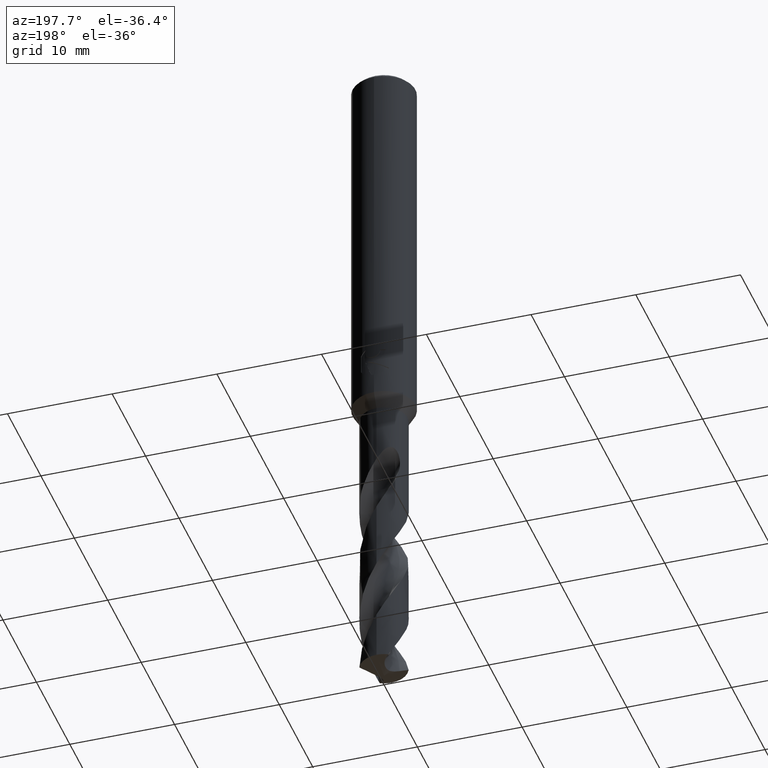
[diagram: clean part render]
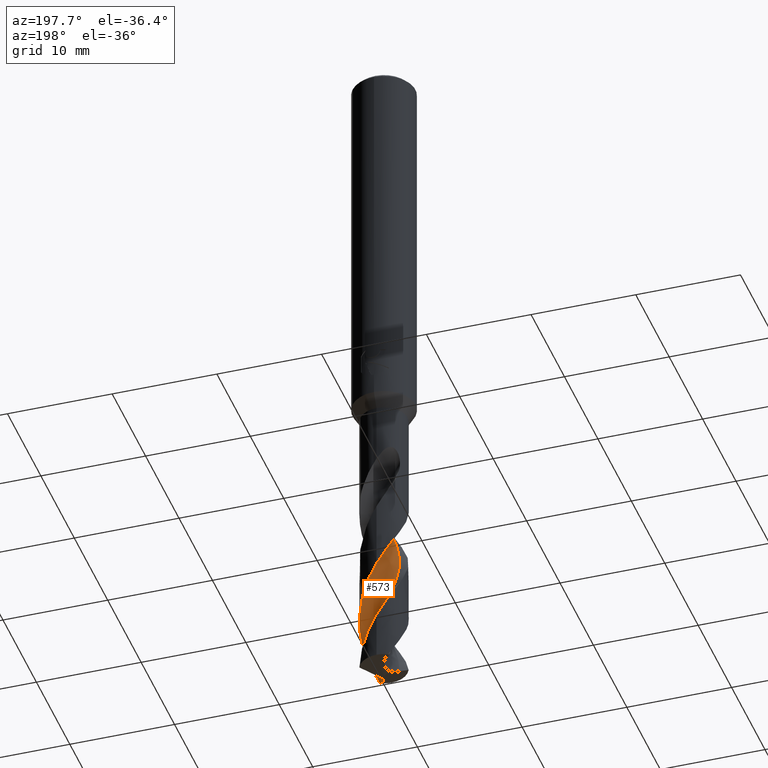
[diagram: same view with one face highlighted and labeled with its STEP entity id]
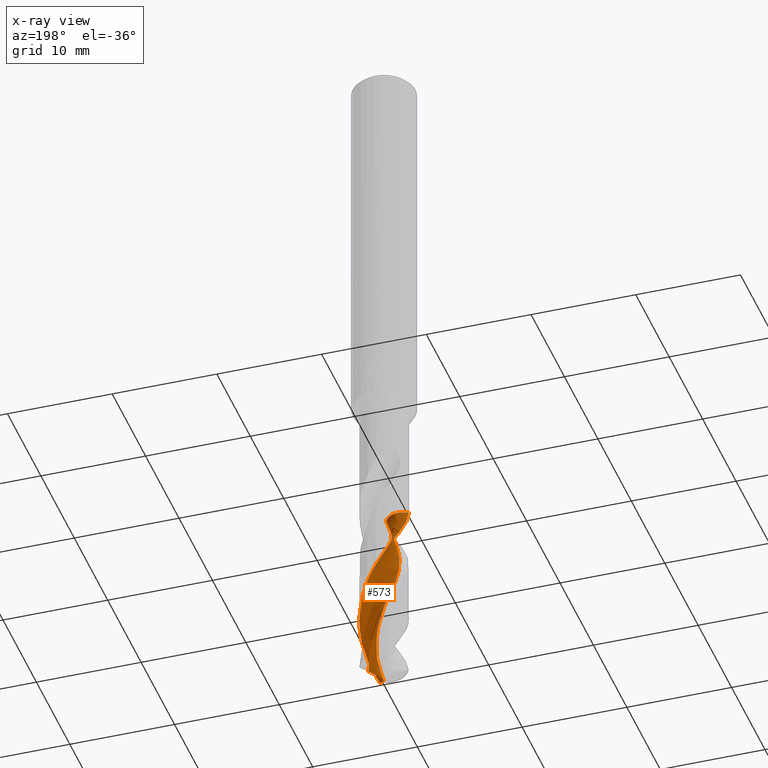
[diagram: x-ray of the same camera — body ghosted, the highlighted face saturated]
A machine part, auxiliary view. The second image highlights one B-rep face of the part: STEP entity #573.
The next image is the same camera in x-ray: the body ghosted, the highlighted face saturated — about 0% of this face is hidden behind the body in this view.
In plain terms, the highlighted face is a freeform B-spline surface patch.
Its self-contained STEP definition (entity closure, byte-faithful):
#347=EDGE_CURVE('',#423,#359,#877,.T.);
#359=VERTEX_POINT('',#891);
#409=VERTEX_POINT('',#942);
#423=VERTEX_POINT('',#957);
#533=VERTEX_POINT('',#1079);
#543=EDGE_CURVE('',#533,#423,#1089,.T.);
#573=ADVANCED_FACE('',(#1123),#1124,.F.);
#617=EDGE_CURVE('',#409,#533,#1173,.T.);
#659=EDGE_CURVE('',#359,#675,#1221,.T.);
#675=VERTEX_POINT('',#1239);
#775=EDGE_CURVE('',#675,#409,#1345,.T.);
#877=B_SPLINE_CURVE_WITH_KNOTS('',3,(#1988,#1989,#1990,#1991,#1992,#1993,#1994,#1995,#1996,#1997,#1998,#1999,#2000,#2001,#2002,#2003,#2004,#2005,#2006,#2007),.UNSPECIFIED.,.F.,.F.,(4,2,2,2,2,2,2,2,2,4),(0.0,0.937655198605884,1.57437014687841,2.17869260320254,2.85637029297408,3.59259860366708,4.42529288121858,5.35650907927525,5.91629192952311,6.47587422448894),.UNSPECIFIED.);
#891=CARTESIAN_POINT('',(1.04147478267095,-1.99444986827458,-65.1810669729011));
#942=CARTESIAN_POINT('',(-2.15646575794409,-0.641642876413779,-47.605));
#957=CARTESIAN_POINT('',(1.36296135958372,0.386316287091737,-65.4843807045066));
#1079=CARTESIAN_POINT('',(0.228372392418388,-1.396039108829,-47.605));
#1089=B_SPLINE_CURVE_WITH_KNOTS('',3,(#3616,#3617,#3618,#3619,#3620,#3621,#3622,#3623,#3624,#3625,#3626,#3627,#3628,#3629,#3630,#3631,#3632,#3633,#3634,#3635,#3636,#3637,#3638,#3639,#3640,#3641,#3642,#3643,#3644,#3645,#3646,#3647,#3648,#3649,#3650,#3651,#3652,#3653),.UNSPECIFIED.,.F.,.F.,(4,1,2,1,2,2,2,2,2,2,2,2,2,2,2,2,2,2,2,4),(0.0,0.41400213322547,0.82800426645094,1.65600853290188,2.48401279935282,3.31201706580376,4.96802559870564,6.62403413160752,8.2800426645094,9.93605119741128,11.5920597303132,13.248068263215,14.9040767961169,16.5600853290188,18.2160938619207,19.8721023948226,21.5281109277244,23.1841194606263,24.8401279935282,26.4961365264301),.UNSPECIFIED.);
#1123=FACE_OUTER_BOUND('',#3881,.T.);
#1124=B_SPLINE_SURFACE_WITH_KNOTS('',3,3,((#3882,#3883,#3884,#3885,#3886,#3887,#3888,#3889,#3890,#3891,#3892,#3893,#3894,#3895,#3896,#3897,#3898,#3899,#3900,#3901,#3902,#3903,#3904,#3905,#3906,#3907,#3908,#3909,#3910,#3911,#3912,#3913,#3914,#3915,#3916,#3917,#3918,#3919),(#3920,#3921,#3922,#3923,#3924,#3925,#3926,#3927,#3928,#3929,#3930,#3931,#3932,#3933,#3934,#3935,#3936,#3937,#3938,#3939,#3940,#3941,#3942,#3943,#3944,#3945,#3946,#3947,#3948,#3949,#3950,#3951,#3952,#3953,#3954,#3955,#3956,#3957),(#3958,#3959,#3960,#3961,#3962,#3963,#3964,#3965,#3966,#3967,#3968,#3969,#3970,#3971,#3972,#3973,#3974,#3975,#3976,#3977,#3978,#3979,#3980,#3981,#3982,#3983,#3984,#3985,#3986,#3987,#3988,#3989,#3990,#3991,#3992,#3993,#3994,#3995),(#3996,#3997,#3998,#3999,#4000,#4001,#4002,#4003,#4004,#4005,#4006,#4007,#4008,#4009,#4010,#4011,#4012,#4013,#4014,#4015,#4016,#4017,#4018,#4019,#4020,#4021,#4022,#4023,#4024,#4025,#4026,#4027,#4028,#4029,#4030,#4031,#4032,#4033),(#4034,#4035,#4036,#4037,#4038,#4039,#4040,#4041,#4042,#4043,#4044,#4045,#4046,#4047,#4048,#4049,#4050,#4051,#4052,#4053,#4054,#4055,#4056,#4057,#4058,#4059,#4060,#4061,#4062,#4063,#4064,#4065,#4066,#4067,#4068,#4069,#4070,#4071),(#4072,#4073,#4074,#4075,#4076,#4077,#4078,#4079,#4080,#4081,#4082,#4083,#4084,#4085,#4086,#4087,#4088,#4089,#4090,#4091,#4092,#4093,#4094,#4095,#4096,#4097,#4098,#4099,#4100,#4101,#4102,#4103,#4104,#4105,#4106,#4107,#4108,#4109),(#4110,#4111,#4112,#4113,#4114,#4115,#4116,#4117,#4118,#4119,#4120,#4121,#4122,#4123,#4124,#4125,#4126,#4127,#4128,#4129,#4130,#4131,#4132,#4133,#4134,#4135,#4136,#4137,#4138,#4139,#4140,#4141,#4142,#4143,#4144,#4145,#4146,#4147),(#4148,#4149,#4150,#4151,#4152,#4153,#4154,#4155,#4156,#4157,#4158,#4159,#4160,#4161,#4162,#4163,#4164,#4165,#4166,#4167,#4168,#4169,#4170,#4171,#4172,#4173,#4174,#4175,#4176,#4177,#4178,#4179,#4180,#4181,#4182,#4183,#4184,#4185),(#4186,#4187,#4188,#4189,#4190,#4191,#4192,#4193,#4194,#4195,#4196,#4197,#4198,#4199,#4200,#4201,#4202,#4203,#4204,#4205,#4206,#4207,#4208,#4209,#4210,#4211,#4212,#4213,#4214,#4215,#4216,#4217,#4218,#4219,#4220,#4221,#4222,#4223),(#4224,#4225,#4226,#4227,#4228,#4229,#4230,#4231,#4232,#4233,#4234,#4235,#4236,#4237,#4238,#4239,#4240,#4241,#4242,#4243,#4244,#4245,#4246,#4247,#4248,#4249,#4250,#4251,#4252,#4253,#4254,#4255,#4256,#4257,#4258,#4259,#4260,#4261),(#4262,#4263,#4264,#4265,#4266,#4267,#4268,#4269,#4270,#4271,#4272,#4273,#4274,#4275,#4276,#4277,#4278,#4279,#4280,#4281,#4282,#4283,#4284,#4285,#4286,#4287,#4288,#4289,#4290,#4291,#4292,#4293,#4294,#4295,#4296,#4297,#4298,#4299)),.UNSPECIFIED.,.F.,.F.,.F.,(4,1,1,1,1,1,1,1,4),(4,1,2,1,2,2,2,2,2,2,2,2,2,2,2,2,2,2,2,4),(-1.30932470691131E-017,0.392701968450189,0.785403936900378,1.17810590535057,1.57080787380076,1.96350984225095,2.35621181070114,2.74891377915132,3.14161574760151),(0.0,0.41400213322547,0.82800426645094,1.65600853290188,2.48401279935282,3.31201706580376,4.96802559870564,6.62403413160752,8.2800426645094,9.93605119741128,11.5920597303132,13.248068263215,14.9040767961169,16.5600853290188,18.2160938619207,19.8721023948226,21.5281109277244,23.1841194606263,24.8401279935282,26.4961365264301),.UNSPECIFIED.);
#1173=B_SPLINE_CURVE_WITH_KNOTS('',3,(#5031,#5032,#5033,#5034,#5035,#5036,#5037,#5038,#5039,#5040,#5041,#5042,#5043,#5044,#5045,#5046,#5047,#5048,#5049,#5050),.UNSPECIFIED.,.F.,.F.,(4,2,2,2,2,2,2,2,2,4),(-4.72523422912441,-4.41269780229977,-4.10010349753628,-3.51386592199827,-2.92769460358241,-2.34182867810799,-1.75632975777836,-1.17104324774457,-0.585684206618211,-0.0),.UNSPECIFIED.);
#1221=B_SPLINE_CURVE_WITH_KNOTS('',3,(#5188,#5189,#5190,#5191,#5192,#5193,#5194,#5195,#5196,#5197,#5198,#5199,#5200,#5201,#5202,#5203,#5204,#5205,#5206,#5207,#5208,#5209,#5210,#5211,#5212,#5213,#5214,#5215,#5216,#5217,#5218,#5219,#5220,#5221,#5222,#5223,#5224,#5225,#5226,#5227,#5228,#5229,#5230,#5231,#5232,#5233,#5234,#5235,#5236,#5237,#5238,#5239,#5240,#5241,#5242,#5243,#5244,#5245,#5246,#5247,#5248,#5249),.UNSPECIFIED.,.F.,.F.,(4,2,2,2,2,2,2,2,2,2,2,2,2,2,2,2,2,2,2,2,2,2,2,2,2,2,2,2,2,2,4),(0.0,0.853601910074113,1.63127977185655,2.5042317063954,3.37787073533634,3.81238491409315,4.55730642858909,5.3015390837507,6.04699632808603,6.79174299548864,7.53771288193073,8.28297301695919,9.02943797731218,9.77527184693091,10.5222643912142,11.2686922826663,12.0162436364254,12.3468828393483,12.7824946930058,13.6580953578005,14.5297012163715,15.2639980394608,15.9028106342366,16.4648215385572,16.9566097642037,17.0101365174947,17.8559783958826,18.1732811023174,18.7276781868835,19.5612269041402,20.3907023416001),.UNSPECIFIED.);
#1239=CARTESIAN_POINT('',(-2.80241454400412E-015,2.24994116683028,-54.8375680020494));
#1345=B_SPLINE_CURVE_WITH_KNOTS('',3,(#6825,#6826,#6827,#6828,#6829,#6830,#6831,#6832,#6833,#6834,#6835,#6836,#6837,#6838,#6839,#6840,#6841,#6842,#6843,#6844,#6845,#6846,#6847,#6848,#6849,#6850,#6851,#6852,#6853,#6854,#6855,#6856,#6857,#6858,#6859,#6860,#6861,#6862,#6863,#6864,#6865,#6866,#6867,#6868,#6869,#6870,#6871,#6872,#6873,#6874,#6875,#6876,#6877,#6878,#6879,#6880,#6881,#6882,#6883,#6884,#6885,#6886),.UNSPECIFIED.,.F.,.F.,(4,2,2,2,2,2,2,2,2,2,2,2,2,2,2,2,2,2,2,2,2,2,2,2,2,2,2,2,2,2,4),(0.0,0.853601910074113,1.63127977185655,2.5042317063954,3.37787073533634,3.81238491409315,4.55730642858909,5.3015390837507,6.04699632808603,6.79174299548864,7.53771288193073,8.28297301695919,9.02943797731218,9.77527184693091,10.5222643912142,11.2686922826663,12.0162436364254,12.3468828393483,12.7824946930058,13.6580953578005,14.5297012163715,15.2639980394608,15.9028106342366,16.4648215385572,16.9566097642037,17.0101365174947,17.8559783958826,18.1732811023174,18.7276781868835,19.5612269041402,20.3907023416001),.UNSPECIFIED.);
#1988=CARTESIAN_POINT('',(1.36296135958353,0.386316287090569,-65.4843807045083));
#1989=CARTESIAN_POINT('',(1.10705829756846,0.240159746212749,-65.5884983021041));
#1990=CARTESIAN_POINT('',(0.897138616239772,0.0537739117766609,-65.6808878831247));
#1991=CARTESIAN_POINT('',(0.644743641055237,-0.241225207083188,-65.7542523477492));
#1992=CARTESIAN_POINT('',(0.569843911276051,-0.353923782552672,-65.7599650017352));
#1993=CARTESIAN_POINT('',(0.460978251569009,-0.57835932309246,-65.7341678086649));
#1994=CARTESIAN_POINT('',(0.425818216180421,-0.691138691030973,-65.7055283307027));
#1995=CARTESIAN_POINT('',(0.392035672052833,-0.936161791672837,-65.631593370052));
#1996=CARTESIAN_POINT('',(0.397589975002889,-1.0739887921756,-65.5832045281346));
#1997=CARTESIAN_POINT('',(0.471263493536187,-1.366969306277,-65.4737555941981));
#1998=CARTESIAN_POINT('',(0.541492898976375,-1.50970321203472,-65.4164432515082));
#1999=CARTESIAN_POINT('',(0.743940643379442,-1.77947205222577,-65.2982221559543));
#2000=CARTESIAN_POINT('',(0.881128442885694,-1.89955503423189,-65.238658196271));
#2001=CARTESIAN_POINT('',(1.2122392340117,-2.09552808262603,-65.1197291762563));
#2002=CARTESIAN_POINT('',(1.40826088493227,-2.16302061746152,-65.0620891416388));
#2003=CARTESIAN_POINT('',(1.73510901566171,-2.21124056599074,-64.9774820792843));
#2004=CARTESIAN_POINT('',(1.86007891897598,-2.21574556668895,-64.9476478011182));
#2005=CARTESIAN_POINT('',(2.10937330586663,-2.19803175267545,-64.8917670931713));
#2006=CARTESIAN_POINT('',(2.23328827330752,-2.17585293717321,-64.865812036502));
#2007=CARTESIAN_POINT('',(2.35409127747258,-2.14085362818842,-64.8418538064014));
#3616=CARTESIAN_POINT('',(1.06066017170911,-1.11433982829089,-45.407));
#3617=CARTESIAN_POINT('',(0.970852253625204,-1.10784891791105,-45.514112184881));
#3618=CARTESIAN_POINT('',(0.825495061437272,-1.11264967895031,-45.7278677386294));
#3619=CARTESIAN_POINT('',(0.748670548099192,-1.14904464855415,-45.941357916201));
#3620=CARTESIAN_POINT('',(0.67942217565685,-1.23164693139715,-46.263710384033));
#3621=CARTESIAN_POINT('',(0.559394916551851,-1.32141548491533,-46.6942222093897));
#3622=CARTESIAN_POINT('',(0.406112548158767,-1.36687770942785,-47.1236362030199));
#3623=CARTESIAN_POINT('',(0.247406234501463,-1.39434662303116,-47.5517175360528));
#3624=CARTESIAN_POINT('',(0.169385865710292,-1.4047191697222,-47.765938798707));
#3625=CARTESIAN_POINT('',(-0.0608031544465562,-1.42748217020329,-48.4102963482116));
#3626=CARTESIAN_POINT('',(-0.220461074563722,-1.40736576683343,-48.8397252654174));
#3627=CARTESIAN_POINT('',(-0.521963681669313,-1.32864107419722,-49.6976662993278));
#3628=CARTESIAN_POINT('',(-0.66592931881658,-1.25790936855415,-50.1267219078035));
#3629=CARTESIAN_POINT('',(-0.925635042510596,-1.08707237755176,-50.9851157678444));
#3630=CARTESIAN_POINT('',(-1.03881532884521,-0.973135473997028,-51.4142828116461));
#3631=CARTESIAN_POINT('',(-1.22876310860737,-0.726889399896656,-52.2725450906518));
#3632=CARTESIAN_POINT('',(-1.29879145792016,-0.582439926193425,-52.7016846063343));
#3633=CARTESIAN_POINT('',(-1.39839193159484,-0.287865768400534,-53.5599846323949));
#3634=CARTESIAN_POINT('',(-1.41762104893031,-0.128472610260632,-53.9891307275403));
#3635=CARTESIAN_POINT('',(-1.4160167087188,0.182483768121575,-54.8474156103265));
#3636=CARTESIAN_POINT('',(-1.38237086446971,0.339466917887478,-55.2765611898176));
#3637=CARTESIAN_POINT('',(-1.27967641124813,0.633007140426077,-56.1348517475798));
#3638=CARTESIAN_POINT('',(-1.19681443645013,0.770515699054384,-56.5639960486374));
#3639=CARTESIAN_POINT('',(-1.00431375940228,1.01472954172804,-57.4222893536179));
#3640=CARTESIAN_POINT('',(-0.881250017884086,1.11782800579673,-57.8514341173781));
#3641=CARTESIAN_POINT('',(-0.619811875235909,1.28618142334965,-58.7097226019353));
#3642=CARTESIAN_POINT('',(-0.469897149907707,1.34364948270792,-59.1388683623076));
#3643=CARTESIAN_POINT('',(-0.167877334160919,1.41777843667924,-59.9971519376623));
#3644=CARTESIAN_POINT('',(-0.00743764845581935,1.4233930360783,-60.4262979764032));
#3645=CARTESIAN_POINT('',(0.302274417656055,1.39531213996169,-61.2846117643533));
#3646=CARTESIAN_POINT('',(0.455828952992436,1.34841124742945,-61.7137488552805));
#3647=CARTESIAN_POINT('',(0.739553988297342,1.22140929691512,-62.5719691789974));
#3648=CARTESIAN_POINT('',(0.869541455712748,1.12714494644452,-63.0011438441069));
#3649=CARTESIAN_POINT('',(1.09618291589488,0.913500178766327,-63.8595913185771));
#3650=CARTESIAN_POINT('',(1.18848438677395,0.782517375372945,-64.288610226855));
#3651=CARTESIAN_POINT('',(1.33683553096599,0.511705838403145,-65.1463069519396));
#3652=CARTESIAN_POINT('',(1.37935455445356,0.354865683097639,-65.5755379511027));
#3653=CARTESIAN_POINT('',(1.3959577645351,0.196331067848229,-66.0042617160175));
#3881=EDGE_LOOP('',(#7240,#7241,#7242,#7243,#7244));
#3882=CARTESIAN_POINT('',(-1.06066017170911,-3.23566017170911,-45.407));
#3883=CARTESIAN_POINT('',(-1.14736072975938,-3.23227661806365,-45.5141917260661));
#3884=CARTESIAN_POINT('',(-1.32261545349016,-3.20806408036519,-45.7295995023112));
#3885=CARTESIAN_POINT('',(-1.49792193976142,-3.13960286879901,-45.9456705121325));
#3886=CARTESIAN_POINT('',(-1.75398108194235,-2.9970275477139,-46.2672100155361));
#3887=CARTESIAN_POINT('',(-2.07723563433484,-2.78304713256871,-46.6946011837618));
#3888=CARTESIAN_POINT('',(-2.36405221455066,-2.52939047762122,-47.1235060588852));
#3889=CARTESIAN_POINT('',(-2.63003982795739,-2.2577874336785,-47.5538623823046));
#3890=CARTESIAN_POINT('',(-2.75141224280572,-2.1100416833231,-47.7688199545863));
#3891=CARTESIAN_POINT('',(-3.07267669175427,-1.63424876400578,-48.4118104663416));
#3892=CARTESIAN_POINT('',(-3.23642495354036,-1.28408573848447,-48.8406441099065));
#3893=CARTESIAN_POINT('',(-3.43721767782874,-0.546024943184121,-49.6993284080551));
#3894=CARTESIAN_POINT('',(-3.47852429859728,-0.161956636037567,-50.1285717918827));
#3895=CARTESIAN_POINT('',(-3.42792630517076,0.601211252523115,-50.9867447250117));
#3896=CARTESIAN_POINT('',(-3.34210936479402,0.977906109019783,-51.4158655733483));
#3897=CARTESIAN_POINT('',(-3.04617667993736,1.68323381701964,-52.2741869745453));
#3898=CARTESIAN_POINT('',(-2.84251350486685,2.01152845946812,-52.7033380505583));
#3899=CARTESIAN_POINT('',(-2.33329406858569,2.58226790887175,-53.5616168908764));
#3900=CARTESIAN_POINT('',(-2.03394709755869,2.82650493612754,-53.9907607620749));
#3901=CARTESIAN_POINT('',(-1.3668068269964,3.20064346682888,-54.8490566134169));
#3902=CARTESIAN_POINT('',(-1.00431415883268,3.33426127413372,-55.2782010047214));
#3903=CARTESIAN_POINT('',(-0.251792820373025,3.4711641065038,-56.1364905364319));
#3904=CARTESIAN_POINT('',(0.1344507893595,3.4796634040678,-56.5656364336138));
#3905=CARTESIAN_POINT('',(0.890605126553836,3.36440831671455,-57.423922719063));
#3906=CARTESIAN_POINT('',(1.25862480435107,3.24684008981195,-57.8530678450178));
#3907=CARTESIAN_POINT('',(1.93620458697357,2.89195103820916,-58.7113602084703));
#3908=CARTESIAN_POINT('',(2.24598779245221,2.66110467636743,-59.1405051668395));
#3909=CARTESIAN_POINT('',(2.77135844752933,2.10521695534624,-59.9988005390435));
#3910=CARTESIAN_POINT('',(2.98924617371244,1.78619014277427,-60.4279417640526));
#3911=CARTESIAN_POINT('',(3.30531763714579,1.08965423906688,-61.2862132745725));
#3912=CARTESIAN_POINT('',(3.40765356609516,0.71709403990616,-61.7153778163067));
#3913=CARTESIAN_POINT('',(3.47992012900564,-0.0443641732257222,-62.5737133690458));
#3914=CARTESIAN_POINT('',(3.45548256947847,-0.429838517118077,-63.0027822208322));
#3915=CARTESIAN_POINT('',(3.27694025627906,-1.17349453856882,-63.860929440834));
#3916=CARTESIAN_POINT('',(3.12848959132681,-1.5305294787629,-64.2902915190901));
#3917=CARTESIAN_POINT('',(2.71472324710996,-2.17440436782346,-65.148530505182));
#3918=CARTESIAN_POINT('',(2.45943938845844,-2.46236855869644,-65.5767894282341));
#3919=CARTESIAN_POINT('',(2.16521744120838,-2.70336496881354,-66.0058249218839));
#3920=CARTESIAN_POINT('',(-1.19949594513028,-3.0968137205744,-45.4069999999999));
#3921=CARTESIAN_POINT('',(-1.28639988875936,-3.09363353686447,-45.5141975596077));
#3922=CARTESIAN_POINT('',(-1.45975564326191,-3.06746428417073,-45.7297265101715));
#3923=CARTESIAN_POINT('',(-1.62819859944381,-2.99255738328638,-45.9459867984099));
#3924=CARTESIAN_POINT('',(-1.86951943794712,-2.83775592462213,-46.2674666792346));
#3925=CARTESIAN_POINT('',(-2.17289333662039,-2.61047516571817,-46.6946289778706));
#3926=CARTESIAN_POINT('',(-2.44013211349704,-2.34807936557383,-47.1234965137139));
#3927=CARTESIAN_POINT('',(-2.68654499296393,-2.06945545451482,-47.5540196860131));
#3928=CARTESIAN_POINT('',(-2.79756828303582,-1.91887269194221,-47.7690312582554));
#3929=CARTESIAN_POINT('',(-3.0862020170441,-1.43712014762252,-48.4119215133952));
#3930=CARTESIAN_POINT('',(-3.22834862918883,-1.08669022405613,-48.840711497423));
#3931=CARTESIAN_POINT('',(-3.38598779486349,-0.355222603624654,-49.6994503080105));
#3932=CARTESIAN_POINT('',(-3.40678667945616,0.0221258288449719,-50.1287074604474));
#3933=CARTESIAN_POINT('',(-3.31742124162945,0.764982744653492,-50.9868641951544));
#3934=CARTESIAN_POINT('',(-3.21440721447098,1.12865250369411,-51.415981652127));
#3935=CARTESIAN_POINT('',(-2.8884287160349,1.80217800849014,-52.2743073917286));
#3936=CARTESIAN_POINT('',(-2.67273350732963,2.11255898467023,-52.7034593140569));
#3937=CARTESIAN_POINT('',(-2.14544051494832,2.64345027126781,-53.5617366012775));
#3938=CARTESIAN_POINT('',(-1.84054129135846,2.86683617342396,-53.9908803005177));
#3939=CARTESIAN_POINT('',(-1.16926741649111,3.19741500409648,-54.8491769733327));
#3940=CARTESIAN_POINT('',(-0.80830485352975,3.30950973752776,-55.2783212698576));
#3941=CARTESIAN_POINT('',(-0.0660371321791816,3.4038815851795,-56.136610724555));
#3942=CARTESIAN_POINT('',(0.311762008595465,3.39252478483521,-56.5657567389829));
#3943=CARTESIAN_POINT('',(1.04438755716835,3.24037929335299,-57.4240425110113));
#3944=CARTESIAN_POINT('',(1.39796390596466,3.10677918188219,-57.8531876638817));
#3945=CARTESIAN_POINT('',(2.04129624246489,2.72465485200206,-58.7114803097156));
#3946=CARTESIAN_POINT('',(2.33220877084458,2.48334577766726,-59.140625219335));
#3947=CARTESIAN_POINT('',(2.81634405824529,1.91284127201819,-59.9989214386832));
#3948=CARTESIAN_POINT('',(3.01298375696743,1.59005528930541,-60.428062309614));
#3949=CARTESIAN_POINT('',(3.28530460489859,0.893104859381725,-61.2863307396098));
#3950=CARTESIAN_POINT('',(3.36632615967513,0.523897760854679,-61.7154972742734));
#3951=CARTESIAN_POINT('',(3.39706787550415,-0.223718812516787,-62.5738412984534));
#3952=CARTESIAN_POINT('',(3.35357093259137,-0.599085249820378,-63.0029023821345));
#3953=CARTESIAN_POINT('',(3.14034025081358,-1.31622053657424,-63.8610275763899));
#3954=CARTESIAN_POINT('',(2.9770949921942,-1.65749757756014,-64.2904148406701));
#3955=CARTESIAN_POINT('',(2.53891294120576,-2.26458070022763,-65.1486935655212));
#3956=CARTESIAN_POINT('',(2.27504775581611,-2.53305334082282,-65.576881226751));
#3957=CARTESIAN_POINT('',(1.97542943972371,-2.75370590963872,-66.0059395676202));
#3958=CARTESIAN_POINT('',(-1.42189471168542,-2.76396924658392,-45.407));
#3959=CARTESIAN_POINT('',(-1.50928621278218,-2.76111483814774,-45.5142071540128));
#3960=CARTESIAN_POINT('',(-1.67806670767501,-2.73178814588393,-45.7299353971024));
#3961=CARTESIAN_POINT('',(-1.83022238346579,-2.64672180133315,-45.9465069882345));
#3962=CARTESIAN_POINT('',(-2.03721087086108,-2.47333416035787,-46.2678888078841));
#3963=CARTESIAN_POINT('',(-2.29554268693177,-2.22736427888723,-46.6946746898608));
#3964=CARTESIAN_POINT('',(-2.52015888283792,-1.95527924870977,-47.1234808165498));
#3965=CARTESIAN_POINT('',(-2.72463858355621,-1.67040069677122,-47.5542783985575));
#3966=CARTESIAN_POINT('',(-2.81383981534743,-1.51826053683945,-47.7693787866098));
#3967=CARTESIAN_POINT('',(-3.03485591388044,-1.03756738755983,-48.4121041469249));
#3968=CARTESIAN_POINT('',(-3.13370219027943,-0.695193999379811,-48.8408223316814));
#3969=CARTESIAN_POINT('',(-3.20767429449549,0.00592942656711115,-49.6996507909065));
#3970=CARTESIAN_POINT('',(-3.1901385856607,0.361685750397055,-50.1289306018632));
#3971=CARTESIAN_POINT('',(-3.0313315374132,1.04851282566422,-50.9870606750425));
#3972=CARTESIAN_POINT('',(-2.8991101959838,1.37929920626298,-51.4161725671816));
#3973=CARTESIAN_POINT('',(-2.52569933390141,1.97728554218442,-52.2745054366442));
#3974=CARTESIAN_POINT('',(-2.29306875913826,2.24706201689905,-52.7036587539922));
#3975=CARTESIAN_POINT('',(-1.74548244615885,2.69108654587151,-53.5619334860818));
#3976=CARTESIAN_POINT('',(-1.43777281588903,2.87057104894248,-53.9910769321458));
#3977=CARTESIAN_POINT('',(-0.775555620659253,3.11240502366858,-54.8493748975309));
#3978=CARTESIAN_POINT('',(-0.426211585557159,3.18207114358189,-55.2785190632148));
#3979=CARTESIAN_POINT('',(0.278640157679488,3.19547643450599,-56.1368083996579));
#3980=CARTESIAN_POINT('',(0.631657851291743,3.14777386033831,-56.5659546015479));
#3981=CARTESIAN_POINT('',(1.3025657249981,2.93121966248375,-57.4242395314902));
#3982=CARTESIAN_POINT('',(1.620886187662,2.77130612835489,-57.8533847231744));
#3983=CARTESIAN_POINT('',(2.18490754814477,2.3483417055039,-58.7116778420156));
#3984=CARTESIAN_POINT('',(2.43392601494905,2.09361581169854,-59.1408226359993));
#3985=CARTESIAN_POINT('',(2.82979536391548,1.51028172712418,-59.9991203109541));
#3986=CARTESIAN_POINT('',(2.98245305409212,1.1884285811985,-60.4282605988369));
#3987=CARTESIAN_POINT('',(3.16712626554839,0.508047330675275,-61.2865239014599));
#3988=CARTESIAN_POINT('',(3.20686143575249,0.154020995015561,-61.7156937703371));
#3989=CARTESIAN_POINT('',(3.16007529580119,-0.549405172340298,-62.5740516752367));
#3990=CARTESIAN_POINT('',(3.08248715029075,-0.896980816014883,-63.0031000059841));
#3991=CARTESIAN_POINT('',(2.81044070905548,-1.54729144968402,-63.8611889808139));
#3992=CARTESIAN_POINT('',(2.62387884152975,-1.85117606322895,-64.2906176154628));
#3993=CARTESIAN_POINT('',(2.15150641061927,-2.37498188026334,-65.1489617970833));
#3994=CARTESIAN_POINT('',(1.87823330926009,-2.6010671330095,-65.5770321549954));
#3995=CARTESIAN_POINT('',(1.57591454973933,-2.77889464438708,-66.0061281230755));
#3996=CARTESIAN_POINT('',(-1.53905381357198,-2.17500039525115,-45.4069999999999));
#3997=CARTESIAN_POINT('',(-1.62730805005974,-2.17231760411955,-45.5142131431363));
#3998=CARTESIAN_POINT('',(-1.78793497694334,-2.14124139820747,-45.7300657972334));
#3999=CARTESIAN_POINT('',(-1.91168592151352,-2.05144411282808,-45.9468317226429));
#4000=CARTESIAN_POINT('',(-2.06042245584703,-1.8720059942035,-46.2681523263184));
#4001=CARTESIAN_POINT('',(-2.24560013103643,-1.62599115175413,-46.694703226338));
#4002=CARTESIAN_POINT('',(-2.40558221055156,-1.36494512573591,-47.1234710170316));
#4003=CARTESIAN_POINT('',(-2.54835491436648,-1.09546983240454,-47.55443990316));
#4004=CARTESIAN_POINT('',(-2.60641823994414,-0.95369812527225,-47.7695957346632));
#4005=CARTESIAN_POINT('',(-2.73432892429935,-0.513289558890436,-48.4122181588177));
#4006=CARTESIAN_POINT('',(-2.77778875324968,-0.206938728488394,-48.8408915175722));
#4007=CARTESIAN_POINT('',(-2.75322311960583,0.404100356755158,-49.6997759482489));
#4008=CARTESIAN_POINT('',(-2.69495326523171,0.707925374847884,-50.1290698916031));
#4009=CARTESIAN_POINT('',(-2.47206894912491,1.27723562708287,-50.9871833386202));
#4010=CARTESIAN_POINT('',(-2.31824506488326,1.54568128308487,-51.4162917416164));
#4011=CARTESIAN_POINT('',(-1.92245965941983,2.01174669383021,-52.2746290748442));
#4012=CARTESIAN_POINT('',(-1.68966696617923,2.21552624459158,-52.7037832571452));
#4013=CARTESIAN_POINT('',(-1.16382166313825,2.52750983323194,-53.5620563931041));
#4014=CARTESIAN_POINT('',(-0.877418750581155,2.64453662092748,-53.9911996776424));
#4015=CARTESIAN_POINT('',(-0.278697817706386,2.76857520739199,-54.8494984579461));
#4016=CARTESIAN_POINT('',(0.0301874238072702,2.78610777823377,-55.2786425479746));
#4017=CARTESIAN_POINT('',(0.636703980563139,2.7087776414275,-56.1369317905296));
#4018=CARTESIAN_POINT('',(0.934511832088951,2.62492814621573,-56.5660781273938));
#4019=CARTESIAN_POINT('',(1.48290910309628,2.35453706702513,-57.4243625158251));
#4020=CARTESIAN_POINT('',(1.73726195805826,2.17839366680727,-57.8535077405306));
#4021=CARTESIAN_POINT('',(2.16791923304552,1.74435637482667,-58.7118011529006));
#4022=CARTESIAN_POINT('',(2.35117337158206,1.49508510674888,-59.1409458897536));
#4023=CARTESIAN_POINT('',(2.61734719090876,0.944639477228604,-59.99924444503));
#4024=CARTESIAN_POINT('',(2.70958427761619,0.649327203045723,-60.4283843815159));
#4025=CARTESIAN_POINT('',(2.78229534078006,0.0422241866634279,-61.2866444865137));
#4026=CARTESIAN_POINT('',(2.77352494794383,-0.267062045190975,-61.7158164359341));
#4027=CARTESIAN_POINT('',(2.64465804338314,-0.86473813404634,-62.5741830045952));
#4028=CARTESIAN_POINT('',(2.53577520909391,-1.1542274137128,-63.003223374021));
#4029=CARTESIAN_POINT('',(2.22057501830335,-1.67816015482763,-63.8612897402221));
#4030=CARTESIAN_POINT('',(2.02316314623574,-1.91683640497223,-64.2907442325434));
#4031=CARTESIAN_POINT('',(1.55121073884549,-2.30559840793195,-65.1491292110259));
#4032=CARTESIAN_POINT('',(1.28923162204658,-2.4675368841793,-65.5771263865948));
#4033=CARTESIAN_POINT('',(1.00775407734589,-2.58446155370995,-66.0062458309368));
#4034=CARTESIAN_POINT('',(-1.42190438805685,-1.58602961915483,-45.4070000000001));
#4035=CARTESIAN_POINT('',(-1.51102136220483,-1.58317522493517,-45.5142098171594));
#4036=CARTESIAN_POINT('',(-1.66344583089171,-1.55360296307073,-45.7299933844532));
#4037=CARTESIAN_POINT('',(-1.75914432814794,-1.47030473956289,-45.9466513928298));
#4038=CARTESIAN_POINT('',(-1.85174751075974,-1.30756895870797,-46.2680059914861));
#4039=CARTESIAN_POINT('',(-1.96932205748807,-1.08950784919174,-46.6946873799537));
#4040=CARTESIAN_POINT('',(-2.07381460589562,-0.863395090647973,-47.1234764576048));
#4041=CARTESIAN_POINT('',(-2.16547225401941,-0.631764852685634,-47.5543502186536));
#4042=CARTESIAN_POINT('',(-2.19873588251139,-0.511488266203155,-47.7694752610772));
#4043=CARTESIAN_POINT('',(-2.25604469712779,-0.143928040472595,-48.4121548450931));
#4044=CARTESIAN_POINT('',(-2.26211951275347,0.107946675735736,-48.8408530949471));
#4045=CARTESIAN_POINT('',(-2.18099102175322,0.598049816066792,-49.6997064493862));
#4046=CARTESIAN_POINT('',(-2.10496114726705,0.838308252525893,-50.1289925352797));
#4047=CARTESIAN_POINT('',(-1.86784926170974,1.27452574854124,-50.9871152286397));
#4048=CARTESIAN_POINT('',(-1.71792417697626,1.47710915564568,-51.4162255681307));
#4049=CARTESIAN_POINT('',(-1.35195169982119,1.81273323936575,-52.2745604111146));
#4050=CARTESIAN_POINT('',(-1.14426532665904,1.95547760961683,-52.7037141198885));
#4051=CARTESIAN_POINT('',(-0.689036292454081,2.1537913995517,-53.5619881400666));
#4052=CARTESIAN_POINT('',(-0.446219890787367,2.22126862779016,-53.9911315039495));
#4053=CARTESIAN_POINT('',(0.0487595660779428,2.26077771553409,-54.8494298545551));
#4054=CARTESIAN_POINT('',(0.300315019318603,2.24562823924405,-55.2785739723111));
#4055=CARTESIAN_POINT('',(0.781258637919256,2.12210108548621,-56.1368632727385));
#4056=CARTESIAN_POINT('',(1.01422638382285,2.02598426453582,-56.5660095346156));
#4057=CARTESIAN_POINT('',(1.42883612133759,1.75273753601074,-57.4242942180858));
#4058=CARTESIAN_POINT('',(1.61787973991593,1.58607922288397,-57.8534394308535));
#4059=CARTESIAN_POINT('',(1.92108737016068,1.19284850732162,-58.7117326730974));
#4060=CARTESIAN_POINT('',(2.04567067132303,0.973783739366805,-59.1408774530942));
#4061=CARTESIAN_POINT('',(2.20460753119652,0.503355707884018,-59.999175503807));
#4062=CARTESIAN_POINT('',(2.25118013645905,0.255686097003739,-60.4283156425413));
#4063=CARTESIAN_POINT('',(2.24849434113502,-0.240870395823138,-61.2865775247046));
#4064=CARTESIAN_POINT('',(2.21203210533375,-0.490259805422478,-61.7157483109129));
#4065=CARTESIAN_POINT('',(2.04780162990896,-0.958824525657945,-62.5741100827049));
#4066=CARTESIAN_POINT('',(1.93223513615731,-1.18267301171943,-63.0031548674006));
#4067=CARTESIAN_POINT('',(1.6255291817209,-1.5733335775818,-63.8612337857687));
#4068=CARTESIAN_POINT('',(1.44304754574595,-1.74761310783761,-64.2906739189662));
#4069=CARTESIAN_POINT('',(1.02316252901448,-2.01177182134689,-65.149036245107));
#4070=CARTESIAN_POINT('',(0.796165811211524,-2.11876844122628,-65.5770740642928));
#4071=CARTESIAN_POINT('',(0.557249662220158,-2.18740194776434,-66.006180466132));
#4072=CARTESIAN_POINT('',(-1.08828163204511,-1.08672368121175,-45.407));
#4073=CARTESIAN_POINT('',(-1.17813000108896,-1.08338058997486,-45.5141976824509));
#4074=CARTESIAN_POINT('',(-1.32355188857131,-1.05833676351866,-45.7297291826223));
#4075=CARTESIAN_POINT('',(-1.39582101431262,-0.991778166182936,-45.9459934537375));
#4076=CARTESIAN_POINT('',(-1.44295536716186,-0.865954724736004,-46.2674720799321));
#4077=CARTESIAN_POINT('',(-1.50876990697349,-0.699590275396716,-46.6946295626174));
#4078=CARTESIAN_POINT('',(-1.57536541437052,-0.526986697521402,-47.1234963130944));
#4079=CARTESIAN_POINT('',(-1.63428186050894,-0.349881662148282,-47.5540229957746));
#4080=CARTESIAN_POINT('',(-1.65285958702398,-0.258954378216342,-47.7690357045279));
#4081=CARTESIAN_POINT('',(-1.67281872710922,0.0142844070077466,-48.4119238500326));
#4082=CARTESIAN_POINT('',(-1.66520157644551,0.201523068310688,-48.840712917928));
#4083=CARTESIAN_POINT('',(-1.57809641383882,0.558250329873793,-49.6994528705026));
#4084=CARTESIAN_POINT('',(-1.50998448419676,0.732984486159462,-50.1287103179213));
#4085=CARTESIAN_POINT('',(-1.31066078307797,1.04079574846546,-50.9868667063206));
#4086=CARTESIAN_POINT('',(-1.18954226561657,1.18402246014365,-51.4159841005146));
#4087=CARTESIAN_POINT('',(-0.90103138705701,1.41054361297931,-52.2743099197023));
#4088=CARTESIAN_POINT('',(-0.739897497953106,1.50650674147899,-52.7034618649002));
#4089=CARTESIAN_POINT('',(-0.393409155048339,1.62682730668054,-53.5617391210186));
#4090=CARTESIAN_POINT('',(-0.209823313448864,1.66520671095218,-53.9908828118129));
#4091=CARTESIAN_POINT('',(0.15696339558524,1.66632124375707,-54.8491795099893));
#4092=CARTESIAN_POINT('',(0.343046129282046,1.64291683030692,-55.2783238011537));
#4093=CARTESIAN_POINT('',(0.690296671336165,1.52476425112021,-56.1366132528904));
#4094=CARTESIAN_POINT('',(0.858665511508699,1.44212731124069,-56.5657592734151));
#4095=CARTESIAN_POINT('',(1.14857902146544,1.21744092627538,-57.4240450287189));
#4096=CARTESIAN_POINT('',(1.2809146566074,1.08453860709149,-57.8531901873773));
#4097=CARTESIAN_POINT('',(1.48199041933915,0.777781397816562,-58.711482834631));
#4098=CARTESIAN_POINT('',(1.56392860533592,0.609076271457145,-59.1406277375886));
#4099=CARTESIAN_POINT('',(1.65441316894212,0.253612845162087,-59.998923990554));
#4100=CARTESIAN_POINT('',(1.67702952778477,0.0674344204103474,-60.4280648528404));
#4101=CARTESIAN_POINT('',(1.64699079998301,-0.298137204968308,-61.2863332046193));
#4102=CARTESIAN_POINT('',(1.60786634735588,-0.481591955349524,-61.7154997986689));
#4103=CARTESIAN_POINT('',(1.46037334901301,-0.817340340556059,-62.5738439796004));
#4104=CARTESIAN_POINT('',(1.36375177096584,-0.977986963834323,-63.0029049114093));
#4105=CARTESIAN_POINT('',(1.11589484753264,-1.24877084459812,-63.8610296405248));
#4106=CARTESIAN_POINT('',(0.971850664688239,-1.36926926314699,-64.2904174090182));
#4107=CARTESIAN_POINT('',(0.64775349950091,-1.53823519950228,-65.1486970232311));
#4108=CARTESIAN_POINT('',(0.474101764498229,-1.60785941377447,-65.5768831607722));
#4109=CARTESIAN_POINT('',(0.292987513090558,-1.64816542947607,-66.0059419800032));
#4110=CARTESIAN_POINT('',(-0.588977322957305,-0.753098487436611,-45.4069999999999));
#4111=CARTESIAN_POINT('',(-0.679314394496776,-0.74902400365044,-45.5141785860484));
#4112=CARTESIAN_POINT('',(-0.819999672590165,-0.730843683933754,-45.7293134150633));
#4113=CARTESIAN_POINT('',(-0.877029463387333,-0.688716783587149,-45.944958071661));
#4114=CARTESIAN_POINT('',(-0.896281827112514,-0.614396030515105,-46.2666318768733));
#4115=CARTESIAN_POINT('',(-0.934059588961545,-0.515600708033243,-46.6945385770036));
#4116=CARTESIAN_POINT('',(-0.986120103691708,-0.406935818958334,-47.1235275590318));
#4117=CARTESIAN_POINT('',(-1.03565383415143,-0.292735043050941,-47.55350805357));
#4118=CARTESIAN_POINT('',(-1.05189527906219,-0.23454301771728,-47.7683439884894));
#4119=CARTESIAN_POINT('',(-1.07344316602768,-0.0627389704830668,-48.4115603330473));
#4120=CARTESIAN_POINT('',(-1.07791160719946,0.059544088821852,-48.8404923173798));
#4121=CARTESIAN_POINT('',(-1.03632586742243,0.290761093267782,-49.6990538273691));
#4122=CARTESIAN_POINT('',(-1.00060440228089,0.40798889856653,-50.1282661932246));
#4123=CARTESIAN_POINT('',(-0.885331631020097,0.611629415562468,-50.9864756194449));
#4124=CARTESIAN_POINT('',(-0.813541866258715,0.711041633367831,-51.415604099457));
#4125=CARTESIAN_POINT('',(-0.638348235600886,0.866408431356931,-52.273915737307));
#4126=CARTESIAN_POINT('',(-0.538125715470485,0.936966373012785,-52.7030649015904));
#4127=CARTESIAN_POINT('',(-0.321947450223903,1.02684422898574,-53.561347242086));
#4128=CARTESIAN_POINT('',(-0.204218768877282,1.06100749432341,-53.9904914871727));
#4129=CARTESIAN_POINT('',(0.0294403716255488,1.07570770533329,-54.848785513232));
#4130=CARTESIAN_POINT('',(0.151875233230344,1.06973222984478,-55.2779301158454));
#4131=CARTESIAN_POINT('',(0.377666418549042,1.00770757790847,-56.1362198002968));
#4132=CARTESIAN_POINT('',(0.491512292352929,0.96224550997473,-56.5653654417892));
#4133=CARTESIAN_POINT('',(0.684805024747781,0.830142471684807,-57.4236528876462));
#4134=CARTESIAN_POINT('',(0.77766733075074,0.750127935052924,-57.8527979537779));
#4135=CARTESIAN_POINT('',(0.917477882292941,0.5623461729763,-58.711089675634));
#4136=CARTESIAN_POINT('',(0.97928910356501,0.456486913420153,-59.1402347667689));
#4137=CARTESIAN_POINT('',(1.05052742086543,0.233432529081743,-59.9985281903856));
#4138=CARTESIAN_POINT('',(1.07454294261542,0.113232196086622,-60.427670209415));
#4139=CARTESIAN_POINT('',(1.06935951080708,-0.120857757311904,-61.2859487063269));
#4140=CARTESIAN_POINT('',(1.05300776935021,-0.242378114845317,-61.7151087202557));
#4141=CARTESIAN_POINT('',(0.971805128690941,-0.46182557684092,-62.5734252208794));
#4142=CARTESIAN_POINT('',(0.916872805948517,-0.571331316311972,-63.0025115503987));
#4143=CARTESIAN_POINT('',(0.769260351903042,-0.753884408193807,-63.8607083939309));
#4144=CARTESIAN_POINT('',(0.681308993512792,-0.83940512187585,-64.2900137795766));
#4145=CARTESIAN_POINT('',(0.482137105753161,-0.957081252305652,-65.1481631646168));
#4146=CARTESIAN_POINT('',(0.372071533655441,-1.01259219262426,-65.5765826980152));
#4147=CARTESIAN_POINT('',(0.255199730487654,-1.04884706196941,-66.00556668043));
#4148=CARTESIAN_POINT('',(-7.11882745754733E-006,-0.635946186384275,-45.407));
#4149=CARTESIAN_POINT('',(-0.0905157978755606,-0.631008965532196,-45.5141554351326));
#4150=CARTESIAN_POINT('',(-0.229451555861734,-0.620982300078537,-45.728809379606));
#4151=CARTESIAN_POINT('',(-0.28175213300942,-0.607259608990792,-45.9437028764005));
#4152=CARTESIAN_POINT('',(-0.294954188056277,-0.591190963893939,-46.265613297511));
#4153=CARTESIAN_POINT('',(-0.332686808159812,-0.565550299376068,-46.6944282755683));
#4154=CARTESIAN_POINT('',(-0.395787236510298,-0.521519372966836,-47.1235654373532));
#4155=CARTESIAN_POINT('',(-0.460725184289153,-0.469025181608112,-47.5528837895439));
#4156=CARTESIAN_POINT('',(-0.487335654397516,-0.441970647813895,-47.7675054195251));
#4157=CARTESIAN_POINT('',(-0.549168834286848,-0.363271890110037,-48.4111196420262));
#4158=CARTESIAN_POINT('',(-0.589660472804715,-0.296374936188254,-48.8402248838578));
#4159=CARTESIAN_POINT('',(-0.638160237847611,-0.163694491539822,-49.6985700659334));
#4160=CARTESIAN_POINT('',(-0.654370519315603,-0.0872001635077791,-50.1277277713651));
#4161=CARTESIAN_POINT('',(-0.65661526062956,0.0523643852597516,-50.9860015130694));
#4162=CARTESIAN_POINT('',(-0.647166455146673,0.130174765131785,-51.4151434343608));
#4163=CARTESIAN_POINT('',(-0.603893961268443,0.263168544035079,-52.2734378586528));
#4164=CARTESIAN_POINT('',(-0.569668345820246,0.333565120466216,-52.702583661474));
#4165=CARTESIAN_POINT('',(-0.485530736635866,0.44518547712394,-53.5608721675791));
#4166=CARTESIAN_POINT('',(-0.430259513570397,0.500656168857403,-53.9900170547138));
#4167=CARTESIAN_POINT('',(-0.314394996639353,0.578853960122098,-54.848307899386));
#4168=CARTESIAN_POINT('',(-0.244093213556285,0.613337862831112,-55.277452822164));
#4169=CARTESIAN_POINT('',(-0.109036304666011,0.649649400547063,-56.1357428455244));
#4170=CARTESIAN_POINT('',(-0.0313367125754613,0.659397568158272,-56.5648879973739));
#4171=CARTESIAN_POINT('',(0.108120542237386,0.649805713740405,-57.4231774961869));
#4172=CARTESIAN_POINT('',(0.184753718127475,0.633758950853123,-57.8523224538335));
#4173=CARTESIAN_POINT('',(0.313492922245549,0.579341357001306,-58.7106130429635));
#4174=CARTESIAN_POINT('',(0.380759513612785,0.539246346885527,-59.1397583697902));
#4175=CARTESIAN_POINT('',(0.484887760612351,0.445887076456549,-59.9980483591252));
#4176=CARTESIAN_POINT('',(0.535444832024206,0.386107031252846,-60.4271917808446));
#4177=CARTESIAN_POINT('',(0.603540878500572,0.263978361999349,-61.2854825802354));
#4178=CARTESIAN_POINT('',(0.631929787011393,0.190963045967778,-61.7146346030696));
#4179=CARTESIAN_POINT('',(0.656478129987721,0.0535950828312035,-62.5729175713032));
#4180=CARTESIAN_POINT('',(0.659632502943412,-0.0246166050022681,-63.0020347056325));
#4181=CARTESIAN_POINT('',(0.638398417377523,-0.164017334196515,-63.8603189188407));
#4182=CARTESIAN_POINT('',(0.615655511536201,-0.238688864878427,-64.2895244103848));
#4183=CARTESIAN_POINT('',(0.551527306609052,-0.356786686188784,-65.1475160156331));
#4184=CARTESIAN_POINT('',(0.505608517878795,-0.423592136148867,-65.576218427299));
#4185=CARTESIAN_POINT('',(0.449639245255995,-0.480688958015939,-66.0051117042035));
#4186=CARTESIAN_POINT('',(0.58896924664008,-0.75309547076557,-45.407));
#4187=CARTESIAN_POINT('',(0.498632169846681,-0.747295504704337,-45.5141317544737));
#4188=CARTESIAN_POINT('',(0.358192589620242,-0.745471397021627,-45.7282938062314));
#4189=CARTESIAN_POINT('',(0.299391436625354,-0.759801424524906,-45.9424189488436));
#4190=CARTESIAN_POINT('',(0.269487502255149,-0.79986656046705,-46.2645714018624));
#4191=CARTESIAN_POINT('',(0.203802180573743,-0.841829781003214,-46.6943154487692));
#4192=CARTESIAN_POINT('',(0.10576812169781,-0.853288999233908,-47.1236041839032));
#4193=CARTESIAN_POINT('',(0.00298455911580417,-0.851910282798681,-47.5522452344622));
#4194=CARTESIAN_POINT('',(-0.0451214853934341,-0.849655521492165,-47.7666476529191));
#4195=CARTESIAN_POINT('',(-0.1798030517001,-0.841559607258707,-48.4106688675277));
#4196=CARTESIAN_POINT('',(-0.274771198121656,-0.812048188627902,-48.8399513309538));
#4197=CARTESIAN_POINT('',(-0.444207965684492,-0.735931228677915,-49.6980752284409));
#4198=CARTESIAN_POINT('',(-0.523985365296727,-0.677197146063349,-50.1271770341611));
#4199=CARTESIAN_POINT('',(-0.659323983411975,-0.551860601443975,-50.9855165444761));
#4200=CARTESIAN_POINT('',(-0.71573800404855,-0.470151532508905,-51.4146722208708));
#4201=CARTESIAN_POINT('',(-0.802908050173551,-0.307344797398703,-52.272949044394));
#4202=CARTESIAN_POINT('',(-0.829718186627888,-0.211841801156453,-52.7020914051938));
#4203=CARTESIAN_POINT('',(-0.859251522403619,-0.0296047839809595,-53.5603862184464));
#4204=CARTESIAN_POINT('',(-0.853530374775069,0.0694527065991147,-53.9895317576543));
#4205=CARTESIAN_POINT('',(-0.82219629493047,0.251392713111647,-54.8478193570564));
#4206=CARTESIAN_POINT('',(-0.784576959649292,0.343206840130521,-55.2769646288643));
#4207=CARTESIAN_POINT('',(-0.695717716518058,0.505092336124798,-56.1352549468811));
#4208=CARTESIAN_POINT('',(-0.630285686211644,0.579681146169864,-56.5643996292904));
#4209=CARTESIAN_POINT('',(-0.493684365551545,0.703877995116423,-57.4226912172419));
#4210=CARTESIAN_POINT('',(-0.40756614929051,0.753141057499576,-57.851836063495));
#4211=CARTESIAN_POINT('',(-0.238020258054374,0.826174304734954,-58.7101255056223));
#4212=CARTESIAN_POINT('',(-0.140547014002072,0.844750699818307,-59.1392710631884));
#4213=CARTESIAN_POINT('',(0.0435993183908479,0.858629493770858,-59.9975575486713));
#4214=CARTESIAN_POINT('',(0.141799383513087,0.844514414566632,-60.4267023938389));
#4215=CARTESIAN_POINT('',(0.320442766162773,0.7977834937215,-61.2850057909828));
#4216=CARTESIAN_POINT('',(0.408728979856509,0.75246037227851,-61.7141496386358));
#4217=CARTESIAN_POINT('',(0.562389755545933,0.650456518901144,-62.5723982955665));
#4218=CARTESIAN_POINT('',(0.631185472452381,0.578928700877001,-63.0015469354665));
#4219=CARTESIAN_POINT('',(0.743224739487049,0.431033986896944,-63.8599205384095));
#4220=CARTESIAN_POINT('',(0.784879168446047,0.341432142195685,-64.2890238756228));
#4221=CARTESIAN_POINT('',(0.845355404878432,0.171266560265424,-65.1468540164322));
#4222=CARTESIAN_POINT('',(0.85437908521978,0.0694787584504586,-65.5758458419379));
#4223=CARTESIAN_POINT('',(0.846701456964734,-0.0301798045515585,-66.0046463132113));
#4224=CARTESIAN_POINT('',(0.921813720574688,-0.975504054869142,-45.4070000000001));
#4225=CARTESIAN_POINT('',(0.83180243295636,-0.969216530469227,-45.5141180188239));
#4226=CARTESIAN_POINT('',(0.68834405898749,-0.972060429653307,-45.7279947550858));
#4227=CARTESIAN_POINT('',(0.618382579971533,-1.00200918299512,-45.9416742244266));
#4228=CARTESIAN_POINT('',(0.563871571406333,-1.07238419351909,-46.2639670648664));
#4229=CARTESIAN_POINT('',(0.463723943987283,-1.14885087535864,-46.6942500059929));
#4230=CARTESIAN_POINT('',(0.330018702663561,-1.18557244950595,-47.1236266565011));
#4231=CARTESIAN_POINT('',(0.190886588667717,-1.20601898942422,-47.5518748512493));
#4232=CARTESIAN_POINT('',(0.12321512479429,-1.213553729618,-47.7661501161892));
#4233=CARTESIAN_POINT('',(-0.0743436425008749,-1.23035459254435,-48.4104074042651));
#4234=CARTESIAN_POINT('',(-0.212399927963289,-1.20996962986682,-48.8397926562206));
#4235=CARTESIAN_POINT('',(-0.470748475870008,-1.13783479732732,-49.6977882089877));
#4236=CARTESIAN_POINT('',(-0.594205862150419,-1.07382138693832,-50.1268575915417));
#4237=CARTESIAN_POINT('',(-0.815142569093462,-0.923292387639363,-50.9852352403252));
#4238=CARTESIAN_POINT('',(-0.911124771941547,-0.822379255300142,-51.41439889854));
#4239=CARTESIAN_POINT('',(-1.07102429295838,-0.607933080428367,-52.2726655159503));
#4240=CARTESIAN_POINT('',(-1.12901923554169,-0.481396347083432,-52.7018058781027));
#4241=CARTESIAN_POINT('',(-1.21054307901,-0.226668956234165,-53.5601043510657));
#4242=CARTESIAN_POINT('',(-1.22421834666541,-0.0881264940300623,-53.9892502870524));
#4243=CARTESIAN_POINT('',(-1.21847704887014,0.179270492375714,-54.8475359656406));
#4244=CARTESIAN_POINT('',(-1.18635965567471,0.314730459327265,-55.2766814632062));
#4245=CARTESIAN_POINT('',(-1.09391554971438,0.565738901345508,-56.1349719439553));
#4246=CARTESIAN_POINT('',(-1.0194965160043,0.683390719792821,-56.5641163750827));
#4247=CARTESIAN_POINT('',(-0.850521790928733,0.890712342111906,-57.4224091409714));
#4248=CARTESIAN_POINT('',(-0.741900145532945,0.977777817874546,-57.8515539444757));
#4249=CARTESIAN_POINT('',(-0.514707353608956,1.1188933162426,-58.7098427114143));
#4250=CARTESIAN_POINT('',(-0.383662503690602,1.16589721663698,-59.1389884230718));
#4251=CARTESIAN_POINT('',(-0.122876926094766,1.22540621239896,-59.9972728455706));
#4252=CARTESIAN_POINT('',(0.0163150154249743,1.22726000947243,-60.4264185429711));
#4253=CARTESIAN_POINT('',(0.282276504541203,1.19876122102531,-61.2847292247261));
#4254=CARTESIAN_POINT('',(0.414516398712566,1.15521178946919,-61.713868321739));
#4255=CARTESIAN_POINT('',(0.656715534423648,1.04204828748497,-62.5720971168969));
#4256=CARTESIAN_POINT('',(0.767642832681285,0.957890374404429,-63.0012640129013));
#4257=CARTESIAN_POINT('',(0.959593889855667,0.770763678053434,-63.859689461625));
#4258=CARTESIAN_POINT('',(1.03709955310115,0.655537630279645,-64.2887335325905));
#4259=CARTESIAN_POINT('',(1.1610321602902,0.421515988926374,-65.1464700477764));
#4260=CARTESIAN_POINT('',(1.19496835662163,0.284166720836594,-65.5756297574882));
#4261=CARTESIAN_POINT('',(1.2061736351367,0.145975531338537,-66.0043763696225));
#4262=CARTESIAN_POINT('',(1.06066017170911,-1.11433982829089,-45.407));
#4263=CARTESIAN_POINT('',(0.970852253625204,-1.10784891791105,-45.514112184881));
#4264=CARTESIAN_POINT('',(0.825495061437272,-1.11264967895031,-45.7278677386294));
#4265=CARTESIAN_POINT('',(0.748670548099192,-1.14904464855415,-45.941357916201));
#4266=CARTESIAN_POINT('',(0.67942217565685,-1.23164693139715,-46.263710384033));
#4267=CARTESIAN_POINT('',(0.559394916551851,-1.32141548491533,-46.6942222093897));
#4268=CARTESIAN_POINT('',(0.406112548158767,-1.36687770942785,-47.1236362030199));
#4269=CARTESIAN_POINT('',(0.247406234501463,-1.39434662303116,-47.5517175360528));
#4270=CARTESIAN_POINT('',(0.169385865710292,-1.4047191697222,-47.765938798707));
#4271=CARTESIAN_POINT('',(-0.0608031544465562,-1.42748217020329,-48.4102963482116));
#4272=CARTESIAN_POINT('',(-0.220461074563722,-1.40736576683343,-48.8397252654174));
#4273=CARTESIAN_POINT('',(-0.521963681669313,-1.32864107419722,-49.6976662993278));
#4274=CARTESIAN_POINT('',(-0.66592931881658,-1.25790936855415,-50.1267219078035));
#4275=CARTESIAN_POINT('',(-0.925635042510596,-1.08707237755176,-50.9851157678444));
#4276=CARTESIAN_POINT('',(-1.03881532884521,-0.973135473997028,-51.4142828116461));
#4277=CARTESIAN_POINT('',(-1.22876310860737,-0.726889399896656,-52.2725450906518));
#4278=CARTESIAN_POINT('',(-1.29879145792016,-0.582439926193425,-52.7016846063343));
#4279=CARTESIAN_POINT('',(-1.39839193159484,-0.287865768400534,-53.5599846323949));
#4280=CARTESIAN_POINT('',(-1.41762104893031,-0.128472610260632,-53.9891307275403));
#4281=CARTESIAN_POINT('',(-1.4160167087188,0.182483768121575,-54.8474156103265));
#4282=CARTESIAN_POINT('',(-1.38237086446971,0.339466917887478,-55.2765611898176));
#4283=CARTESIAN_POINT('',(-1.27967641124813,0.633007140426077,-56.1348517475798));
#4284=CARTESIAN_POINT('',(-1.19681443645013,0.770515699054384,-56.5639960486374));
#4285=CARTESIAN_POINT('',(-1.00431375940228,1.01472954172804,-57.4222893536179));
#4286=CARTESIAN_POINT('',(-0.881250017884086,1.11782800579673,-57.8514341173781));
#4287=CARTESIAN_POINT('',(-0.619811875235909,1.28618142334965,-58.7097226019353));
#4288=CARTESIAN_POINT('',(-0.469897149907707,1.34364948270792,-59.1388683623076));
#4289=CARTESIAN_POINT('',(-0.167877334160919,1.41777843667924,-59.9971519376623));
#4290=CARTESIAN_POINT('',(-0.00743764845581935,1.4233930360783,-60.4262979764032));
#4291=CARTESIAN_POINT('',(0.302274417656055,1.39531213996169,-61.2846117643533));
#4292=CARTESIAN_POINT('',(0.455828952992436,1.34841124742945,-61.7137488552805));
#4293=CARTESIAN_POINT('',(0.739553988297342,1.22140929691512,-62.5719691789974));
#4294=CARTESIAN_POINT('',(0.869541455712748,1.12714494644452,-63.0011438441069));
#4295=CARTESIAN_POINT('',(1.09618291589488,0.913500178766327,-63.8595913185771));
#4296=CARTESIAN_POINT('',(1.18848438677395,0.782517375372945,-64.288610226855));
#4297=CARTESIAN_POINT('',(1.33683553096599,0.511705838403145,-65.1463069519396));
#4298=CARTESIAN_POINT('',(1.37935455445356,0.354865683097639,-65.5755379511027));
#4299=CARTESIAN_POINT('',(1.3959577645351,0.196331067848229,-66.0042617160175));
#5031=CARTESIAN_POINT('',(-2.65560907329495,-2.21940441830166,-47.605));
#5032=CARTESIAN_POINT('',(-2.68417729013397,-2.11921842315227,-47.605));
#5033=CARTESIAN_POINT('',(-2.7022260886386,-2.01632721668259,-47.605));
#5034=CARTESIAN_POINT('',(-2.7167088881117,-1.80845242934302,-47.605));
#5035=CARTESIAN_POINT('',(-2.71309959174013,-1.70403273683986,-47.605));
#5036=CARTESIAN_POINT('',(-2.6716979020246,-1.40729345166217,-47.605));
#5037=CARTESIAN_POINT('',(-2.60714268428835,-1.22087470139053,-47.605));
#5038=CARTESIAN_POINT('',(-2.41023497234321,-0.883296989527649,-47.605));
#5039=CARTESIAN_POINT('',(-2.27976583051508,-0.735349718237949,-47.605));
#5040=CARTESIAN_POINT('',(-1.96955423918026,-0.497857692008165,-47.605));
#5041=CARTESIAN_POINT('',(-1.79279294496062,-0.41054535664544,-47.605));
#5042=CARTESIAN_POINT('',(-1.41587365098203,-0.308624427470575,-47.605));
#5043=CARTESIAN_POINT('',(-1.2193297388896,-0.294944041081156,-47.605));
#5044=CARTESIAN_POINT('',(-0.832126411399479,-0.343688274923808,-47.605));
#5045=CARTESIAN_POINT('',(-0.645173527784401,-0.405618873306822,-47.605));
#5046=CARTESIAN_POINT('',(-0.305500408195528,-0.597678114190599,-47.605));
#5047=CARTESIAN_POINT('',(-0.156044420533648,-0.725972050187855,-47.605));
#5048=CARTESIAN_POINT('',(0.0853520836603753,-1.03272365638344,-47.605));
#5049=CARTESIAN_POINT('',(0.174943701775708,-1.2082643131508,-47.605));
#5050=CARTESIAN_POINT('',(0.228372392418394,-1.39603910882899,-47.605));
#5188=CARTESIAN_POINT('',(1.04147478267094,-1.99444986827459,-65.1810669729011));
#5189=CARTESIAN_POINT('',(1.16832020358411,-1.9282113246664,-64.9351355299499));
#5190=CARTESIAN_POINT('',(1.28785560016103,-1.85039934807667,-64.6871643708785));
#5191=CARTESIAN_POINT('',(1.49987214259297,-1.68211507606878,-64.2177815799128));
#5192=CARTESIAN_POINT('',(1.59400945858056,-1.59322440691688,-63.9953925956457));
#5193=CARTESIAN_POINT('',(1.77677713883743,-1.38803432038278,-63.5210826776722));
#5194=CARTESIAN_POINT('',(1.86270387796066,-1.27040695480968,-63.2696178728881));
#5195=CARTESIAN_POINT('',(2.01080057760187,-1.01995150099166,-62.7677614520497));
#5196=CARTESIAN_POINT('',(2.07244373249991,-0.887957554661842,-62.5183363466736));
#5197=CARTESIAN_POINT('',(2.1449869279315,-0.683127235230792,-62.1421298821426));
#5198=CARTESIAN_POINT('',(2.1658210761946,-0.613898180807298,-62.0166901475082));
#5199=CARTESIAN_POINT('',(2.21326792932311,-0.423361991065442,-61.6771854328005));
#5200=CARTESIAN_POINT('',(2.23325528812462,-0.300668753276429,-61.4638751648771));
#5201=CARTESIAN_POINT('',(2.2527686605382,-0.0531484900940502,-61.0355073246745));
#5202=CARTESIAN_POINT('',(2.25226199162504,0.0709965228524343,-60.8206720621012));
#5203=CARTESIAN_POINT('',(2.23084525936868,0.317952130452363,-60.3921689443253));
#5204=CARTESIAN_POINT('',(2.2099215002898,0.440507544841298,-60.17883881346));
#5205=CARTESIAN_POINT('',(2.14803121654967,0.680970971760602,-59.7504530131687));
#5206=CARTESIAN_POINT('',(2.10725372361425,0.798230899552873,-59.5356064713638));
#5207=CARTESIAN_POINT('',(2.00683849909988,1.02485584946788,-59.1070983767555));
#5208=CARTESIAN_POINT('',(1.94726792372768,1.13398178553537,-58.8937718792568));
#5209=CARTESIAN_POINT('',(1.81067529695502,1.34133579583146,-58.4653866215238));
#5210=CARTESIAN_POINT('',(1.73404481318433,1.43900790180678,-58.2505380907167));
#5211=CARTESIAN_POINT('',(1.56552376755977,1.62074955994967,-57.8220392312242));
#5212=CARTESIAN_POINT('',(1.4737664664842,1.70462455104676,-57.6087204384582));
#5213=CARTESIAN_POINT('',(1.27726711874477,1.8564170133982,-57.1803366461742));
#5214=CARTESIAN_POINT('',(1.17307598961289,1.92393240834866,-56.9654848770128));
#5215=CARTESIAN_POINT('',(0.954688876329339,2.04113425576373,-56.5369799755353));
#5216=CARTESIAN_POINT('',(0.840676542380622,2.09068479017669,-56.3236642408402));
#5217=CARTESIAN_POINT('',(0.605533464101772,2.17048263912206,-55.8952755042643));
#5218=CARTESIAN_POINT('',(0.485055711551167,2.20052567318152,-55.6804208139052));
#5219=CARTESIAN_POINT('',(0.240440367468241,2.24049457518709,-55.2519019923718));
#5220=CARTESIAN_POINT('',(0.116516217299525,2.25035356003739,-55.0385839585666));
#5221=CARTESIAN_POINT('',(-0.0626225215449489,2.24973971547935,-54.7295314281947));
#5222=CARTESIAN_POINT('',(-0.117463378432067,2.24753981529229,-54.634816772088));
#5223=CARTESIAN_POINT('',(-0.244084311322765,2.23782471225764,-54.4149935126561));
#5224=CARTESIAN_POINT('',(-0.315841878570154,2.22883391886839,-54.2895626040842));
#5225=CARTESIAN_POINT('',(-0.530390803081618,2.19135805990638,-53.9130649851109));
#5226=CARTESIAN_POINT('',(-0.670920874616511,2.15249718409931,-53.6634010604236));
#5227=CARTESIAN_POINT('',(-0.941971985428963,2.04838036675425,-53.1619152652599));
#5228=CARTESIAN_POINT('',(-1.07187063509172,1.98350749535783,-52.9108510197641));
#5229=CARTESIAN_POINT('',(-1.29823703922142,1.84165021496091,-52.4499430018967));
#5230=CARTESIAN_POINT('',(-1.39620096594161,1.7685191388605,-52.2401707509143));
#5231=CARTESIAN_POINT('',(-1.56725658012554,1.61775103550377,-51.8458744585005));
#5232=CARTESIAN_POINT('',(-1.64184547226264,1.5420103102894,-51.6617173814044));
#5233=CARTESIAN_POINT('',(-1.77160693892815,1.39007157147984,-51.3167580932783));
#5234=CARTESIAN_POINT('',(-1.82786530946887,1.31522117083355,-51.155791504873));
#5235=CARTESIAN_POINT('',(-1.92434005117057,1.16865488055938,-50.8531607226733));
#5236=CARTESIAN_POINT('',(-1.96549901894693,1.09799448072092,-50.712162893378));
#5237=CARTESIAN_POINT('',(-2.00670496449749,1.01751638716772,-50.5553324995779));
#5238=CARTESIAN_POINT('',(-2.010701962099,1.00959498112507,-50.5399363660282));
#5239=CARTESIAN_POINT('',(-2.07724812419501,0.875741595186355,-50.2807037730086));
#5240=CARTESIAN_POINT('',(-2.12801656854392,0.744031319921235,-50.0383996724937));
#5241=CARTESIAN_POINT('',(-2.18047992435161,0.557149031010544,-49.7036852882184));
#5242=CARTESIAN_POINT('',(-2.19297923902866,0.505708330173717,-49.6124406344648));
#5243=CARTESIAN_POINT('',(-2.2222912458657,0.363395589803294,-49.361496541143));
#5244=CARTESIAN_POINT('',(-2.23532904976021,0.27190408929936,-49.2014130044997));
#5245=CARTESIAN_POINT('',(-2.25381246313925,0.0413312768685866,-48.8018694906399));
#5246=CARTESIAN_POINT('',(-2.25205819155897,-0.0978165942438229,-48.5636169313703));
#5247=CARTESIAN_POINT('',(-2.22303354775473,-0.373170210114121,-48.0848377885683));
#5248=CARTESIAN_POINT('',(-2.19600174731237,-0.50878541176045,-47.8435698856697));
#5249=CARTESIAN_POINT('',(-2.15644947917958,-0.641697576125194,-47.6049017733755));
#6825=CARTESIAN_POINT('',(1.04147478267094,-1.99444986827459,-65.1810669729011));
#6826=CARTESIAN_POINT('',(1.16832020358411,-1.9282113246664,-64.9351355299499));
#6827=CARTESIAN_POINT('',(1.28785560016103,-1.85039934807667,-64.6871643708785));
#6828=CARTESIAN_POINT('',(1.49987214259297,-1.68211507606878,-64.2177815799128));
#6829=CARTESIAN_POINT('',(1.59400945858056,-1.59322440691688,-63.9953925956457));
#6830=CARTESIAN_POINT('',(1.77677713883743,-1.38803432038278,-63.5210826776722));
#6831=CARTESIAN_POINT('',(1.86270387796066,-1.27040695480968,-63.2696178728881));
#6832=CARTESIAN_POINT('',(2.01080057760187,-1.01995150099166,-62.7677614520497));
#6833=CARTESIAN_POINT('',(2.07244373249991,-0.887957554661842,-62.5183363466736));
#6834=CARTESIAN_POINT('',(2.1449869279315,-0.683127235230792,-62.1421298821426));
#6835=CARTESIAN_POINT('',(2.1658210761946,-0.613898180807298,-62.0166901475082));
#6836=CARTESIAN_POINT('',(2.21326792932311,-0.423361991065442,-61.6771854328005));
#6837=CARTESIAN_POINT('',(2.23325528812462,-0.300668753276429,-61.4638751648771));
#6838=CARTESIAN_POINT('',(2.2527686605382,-0.0531484900940502,-61.0355073246745));
#6839=CARTESIAN_POINT('',(2.25226199162504,0.0709965228524343,-60.8206720621012));
#6840=CARTESIAN_POINT('',(2.23084525936868,0.317952130452363,-60.3921689443253));
#6841=CARTESIAN_POINT('',(2.2099215002898,0.440507544841298,-60.17883881346));
#6842=CARTESIAN_POINT('',(2.14803121654967,0.680970971760602,-59.7504530131687));
#6843=CARTESIAN_POINT('',(2.10725372361425,0.798230899552873,-59.5356064713638));
#6844=CARTESIAN_POINT('',(2.00683849909988,1.02485584946788,-59.1070983767555));
#6845=CARTESIAN_POINT('',(1.94726792372768,1.13398178553537,-58.8937718792568));
#6846=CARTESIAN_POINT('',(1.81067529695502,1.34133579583146,-58.4653866215238));
#6847=CARTESIAN_POINT('',(1.73404481318433,1.43900790180678,-58.2505380907167));
#6848=CARTESIAN_POINT('',(1.56552376755977,1.62074955994967,-57.8220392312242));
#6849=CARTESIAN_POINT('',(1.4737664664842,1.70462455104676,-57.6087204384582));
#6850=CARTESIAN_POINT('',(1.27726711874477,1.8564170133982,-57.1803366461742));
#6851=CARTESIAN_POINT('',(1.17307598961289,1.92393240834866,-56.9654848770128));
#6852=CARTESIAN_POINT('',(0.954688876329339,2.04113425576373,-56.5369799755353));
#6853=CARTESIAN_POINT('',(0.840676542380622,2.09068479017669,-56.3236642408402));
#6854=CARTESIAN_POINT('',(0.605533464101772,2.17048263912206,-55.8952755042643));
#6855=CARTESIAN_POINT('',(0.485055711551167,2.20052567318152,-55.6804208139052));
#6856=CARTESIAN_POINT('',(0.240440367468241,2.24049457518709,-55.2519019923718));
#6857=CARTESIAN_POINT('',(0.116516217299525,2.25035356003739,-55.0385839585666));
#6858=CARTESIAN_POINT('',(-0.0626225215449489,2.24973971547935,-54.7295314281947));
#6859=CARTESIAN_POINT('',(-0.117463378432067,2.24753981529229,-54.634816772088));
#6860=CARTESIAN_POINT('',(-0.244084311322765,2.23782471225764,-54.4149935126561));
#6861=CARTESIAN_POINT('',(-0.315841878570154,2.22883391886839,-54.2895626040842));
#6862=CARTESIAN_POINT('',(-0.530390803081618,2.19135805990638,-53.9130649851109));
#6863=CARTESIAN_POINT('',(-0.670920874616511,2.15249718409931,-53.6634010604236));
#6864=CARTESIAN_POINT('',(-0.941971985428963,2.04838036675425,-53.1619152652599));
#6865=CARTESIAN_POINT('',(-1.07187063509172,1.98350749535783,-52.9108510197641));
#6866=CARTESIAN_POINT('',(-1.29823703922142,1.84165021496091,-52.4499430018967));
#6867=CARTESIAN_POINT('',(-1.39620096594161,1.7685191388605,-52.2401707509143));
#6868=CARTESIAN_POINT('',(-1.56725658012554,1.61775103550377,-51.8458744585005));
#6869=CARTESIAN_POINT('',(-1.64184547226264,1.5420103102894,-51.6617173814044));
#6870=CARTESIAN_POINT('',(-1.77160693892815,1.39007157147984,-51.3167580932783));
#6871=CARTESIAN_POINT('',(-1.82786530946887,1.31522117083355,-51.155791504873));
#6872=CARTESIAN_POINT('',(-1.92434005117057,1.16865488055938,-50.8531607226733));
#6873=CARTESIAN_POINT('',(-1.96549901894693,1.09799448072092,-50.712162893378));
#6874=CARTESIAN_POINT('',(-2.00670496449749,1.01751638716772,-50.5553324995779));
#6875=CARTESIAN_POINT('',(-2.010701962099,1.00959498112507,-50.5399363660282));
#6876=CARTESIAN_POINT('',(-2.07724812419501,0.875741595186355,-50.2807037730086));
#6877=CARTESIAN_POINT('',(-2.12801656854392,0.744031319921235,-50.0383996724937));
#6878=CARTESIAN_POINT('',(-2.18047992435161,0.557149031010544,-49.7036852882184));
#6879=CARTESIAN_POINT('',(-2.19297923902866,0.505708330173717,-49.6124406344648));
#6880=CARTESIAN_POINT('',(-2.2222912458657,0.363395589803294,-49.361496541143));
#6881=CARTESIAN_POINT('',(-2.23532904976021,0.27190408929936,-49.2014130044997));
#6882=CARTESIAN_POINT('',(-2.25381246313925,0.0413312768685866,-48.8018694906399));
#6883=CARTESIAN_POINT('',(-2.25205819155897,-0.0978165942438229,-48.5636169313703));
#6884=CARTESIAN_POINT('',(-2.22303354775473,-0.373170210114121,-48.0848377885683));
#6885=CARTESIAN_POINT('',(-2.19600174731237,-0.50878541176045,-47.8435698856697));
#6886=CARTESIAN_POINT('',(-2.15644947917958,-0.641697576125194,-47.6049017733755));
#7240=ORIENTED_EDGE('',*,*,#347,.F.);
#7241=ORIENTED_EDGE('',*,*,#543,.F.);
#7242=ORIENTED_EDGE('',*,*,#617,.F.);
#7243=ORIENTED_EDGE('',*,*,#775,.F.);
#7244=ORIENTED_EDGE('',*,*,#659,.F.);